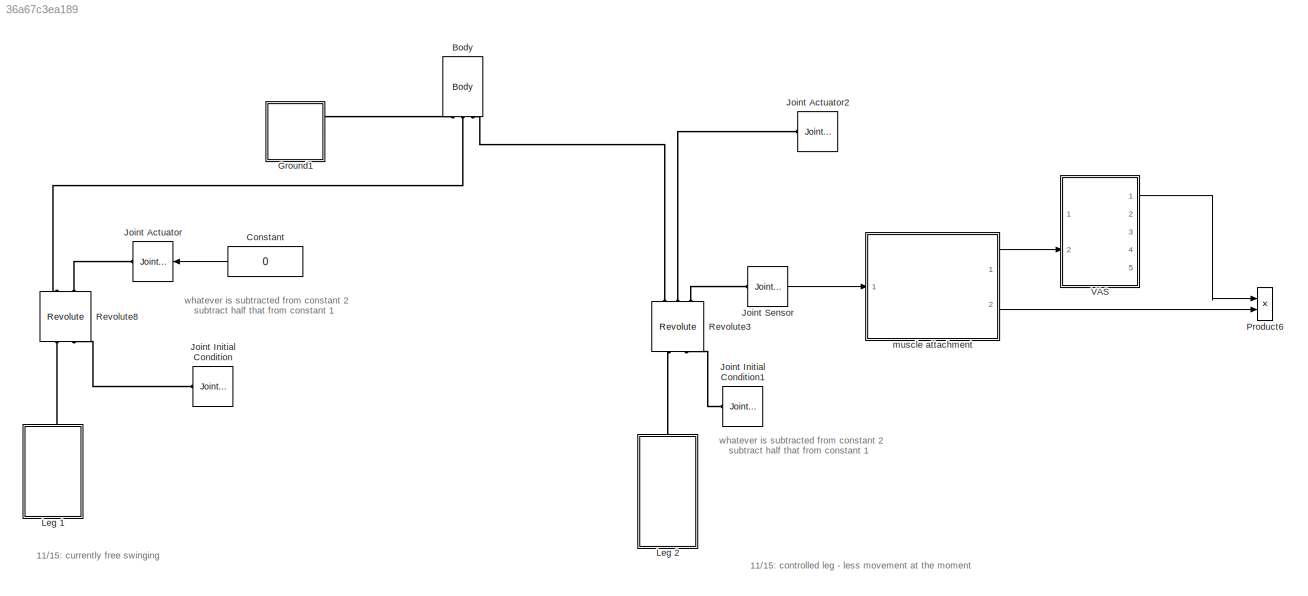
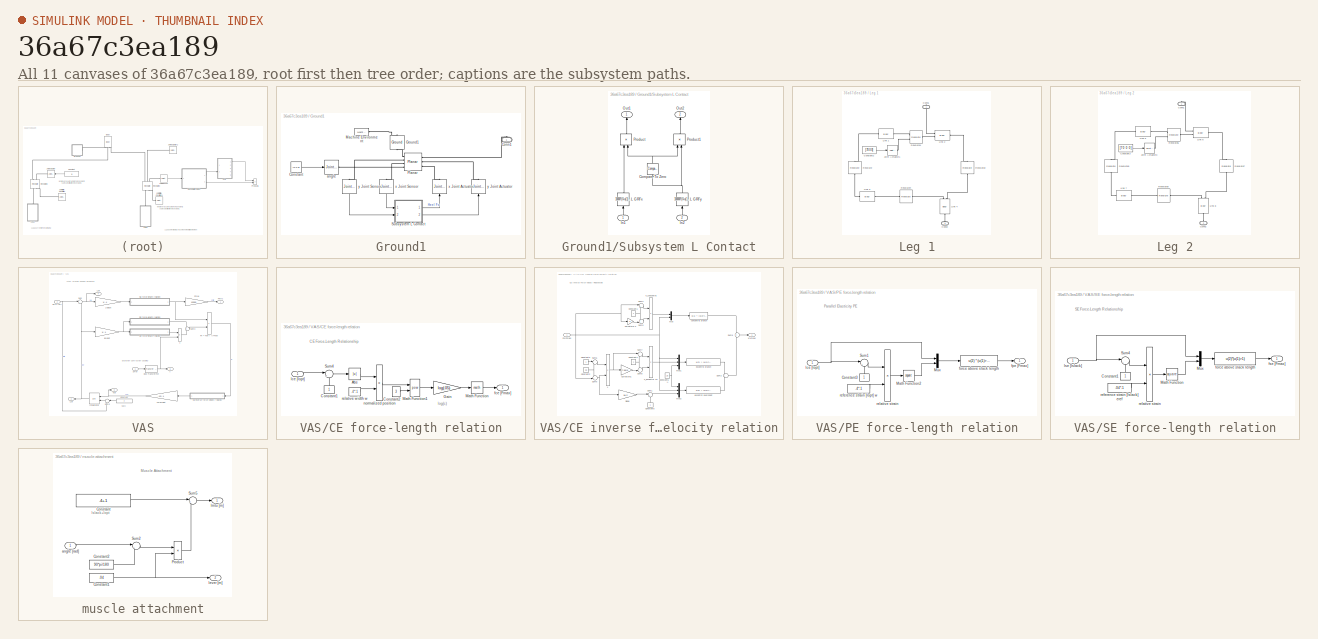
[diagram: thumbnail index - all 11 canvases of the model, root first then tree order]
MODEL slx_36a67c3ea189
KIND model
BLOCK [Reference] Body  REF=mblibv1/Bodies/Body
  AttachedToCS = CG
  BodyColor = [1 0 0]
  BodyColorSelMode = MACHINE_DEFAULT
  CG = Left$CG$[0 0 0]$CS1$CS1$m$[0 0 0]$Euler X-Y-Z$deg$WORLD$false$none
  CGPos = [0 0 0]
  CGRot = [0 0 0]
  CS0Pos = []
  CS0Rot = []
  CS10Pos = []
  CS10Rot = []
  CS11Pos = []
  CS11Rot = []
  CS12Pos = []
  CS12Rot = []
  CS13Pos = []
  CS13Rot = []
  CS14Pos = []
  CS14Rot = []
  CS15Pos = []
  CS15Rot = []
  CS16Pos = []
  CS16Rot = []
  CS17Pos = []
  CS17Rot = []
  CS18Pos = []
  CS18Rot = []
  CS19Pos = []
  CS19Rot = []
  CS1Pos = [0 0 0]
  CS1Rot = [0 0 0]
  CS20Pos = []
  CS20Rot = []
  CS2Pos = [0 .25 0]
  CS2Rot = [0 0 0]
  CS3Pos = [0 0 0]
  CS3Rot = [0 0 0]
  CS4Pos = [0 0 0]
  CS4Rot = [0 0 0]
  CS5Pos = []
  CS5Rot = []
  CS6Pos = []
  CS6Rot = []
  CS7Pos = []
  CS7Rot = []
  CS8Pos = []
  CS8Rot = []
  CS9Pos = []
  CS9Rot = []
  ClassName = Body
  Density = 1
  DensityUnits = kg/m^3
  DensityUse = false
  DialogClass = MechanicalBodyBlock
  GraphicsMode = MACHINE_DEFAULT
  Inertia = eye(3)
  InertiaUnits = kg*m^2
  LConnTagsString = CS4|CS3|CS1
  Mass = 44
  MassUnits = kg
  Ports = [0, 0, 0, 0, 0, 3, 1]
  RConnTagsString = CS2
  Shape = Cylinder
  ShapeDims = [1 1]
  ShapeUnits = m
  ShapeUse = false
  SourceBlock = mblibv1/Bodies/Body
  SourceType = Body
  UpdateFromCAD = off
  WorkingFrames = Left$CS4$[0 0 0]$Adjoining$Adjoining$m$[0 0 0]$Euler X-Y-Z$deg$WORLD$true$none#Left$CS3$[0 0 0]$CS4$CS4$m$[0 0 0]$Euler X-Y-Z$deg$WORLD$true$none#Left$CS1$[0 0 0]$CS4$CS4$m$[0 0 0]$Euler X-Y-Z$deg$WORLD$true$none#Right$CS2$[0 .25 0]$CS4$CS4$m$[0 0 0]$Euler X-Y-Z$deg$WORLD$true$none
BLOCK [Constant] Constant
  Value = 0
BLOCK [SubSystem] Ground1
  FunctionWithSeparateData = off
  MaskHideContents = off
  MinAlgLoopOccurrences = off
  Opaque = off
  Ports = [0, 0, 0, 0, 0, 0, 1]
  PropExecContextOutsideSubsystem = off
  RTWSystemCode = Auto
  RequestExecContextInheritance = off
BLOCK [PMIOPort] Ground1/Conn1
  Port = 1
  Side = Right
BLOCK [Constant] Ground1/Constant
  Value = [0 0 0]
BLOCK [Reference] Ground1/Ground1  REF=mblibv1/Bodies/Ground
  ClassName = Ground
  CoordPosition = [0 0 0]
  CoordPositionUnits = m
  DialogClass = GroundBlock
  LeftPortType = env
  MachineId = [1 0]
  PhysicalDomain = Mechanical
  Ports = [0, 0, 0, 0, 0, 1, 1]
  RightPortType = workingframe
  ShowEnvPort = on
  SourceBlock = mblibv1/Bodies/Ground
  SourceType = Ground
  StateVectorMgrId = 0
  UpdateFromCAD = off
  UserDataPersistent = on
BLOCK [Reference] Ground1/Machine Environment  REF=mblibv1/Bodies/Machine
Environment
  AnalysisType = Forward dynamics
  AngularAssemblyTolerance = 1e-3
  AngularAssemblyToleranceUnits = rad
  BodyColorSelMode = Use model default
  BodyVisualizationType = Use model default body geometries
  ClassName = Environment
  ConstraintAbsTolerance = 1e-4
  ConstraintRelTolerance = 1e-4
  ConstraintSolverType = Stabilizing
  DefaultBodyColor = [1 0 0]
  DialogTemplateClass = MECH.MachineEnvironment
  Dimensionality = Auto-detect
  Gravity = [0 -9.81 0]
  GravityAsSignal = off
  GravityUnits = m/s^2
  LinearAssemblyTolerance = 1e-3
  LinearAssemblyToleranceUnits = m
  PerturbationSize = 1e-5
  PhysicalDomain = Mechanical
  PortType = env
  Ports = [0, 0, 0, 0, 0, 0, 1]
  RedundancyAnalysisTolerance = 1e-14
  RedundancyAnalysisToleranceType = Automatically select tolerance
  SourceBlock = mblibv1/Bodies/Machine\nEnvironment
  SourceType = Machine Environment
  StatePerturbationType = Fixed
  SyncWhenCopied = off
  UseRobustSingularityHandling = off
  VisualizeMachine = on
BLOCK [Reference] Ground1/Planar  REF=mblibv1/Joints/Planar
  ClassName = PlanarJoint
  CutJoint = off
  DialogClass = JointBlock
  LConnTagsString = __newl0|SA1|SA2|SA3
  MarkAsCut = off
  NumSAPorts = 5
  P1Axis = [1 0 0]
  P2Axis = [0 1 0]
  Ports = [0, 0, 0, 0, 0, 4, 3]
  PrimitiveProps = P1$World$[1 0 0]$prismatic#P2$World$[0 1 0]$prismatic#R1$World$[0 0 1]$revolute
  Primitives = prismatic_prismatic
  R1Axis = [0 0 1]
  RConnTagsString = __newr0|SA1|SA2
  SourceBlock = mblibv1/Joints/Planar
  SourceType = Planar
  UpdateFromCAD = off
BLOCK [SubSystem] Ground1/Subsystem L Contact
  FunctionWithSeparateData = off
  MaskHideContents = off
  MinAlgLoopOccurrences = off
  Opaque = off
  Ports = [2, 2]
  PropExecContextOutsideSubsystem = off
  RTWSystemCode = Auto
  RequestExecContextInheritance = off
BLOCK [Reference] Ground1/Subsystem L Contact/Compare To Zero  REF=simulink/Logic and Bit
Operations/Compare
To Zero
  OutDataTypeStr = uint8
  Ports = [1, 1]
  SourceBlock = simulink/Logic and Bit\nOperations/Compare\nTo Zero
  SourceType = Compare To Zero
  ZeroCross = off
  relop = >
BLOCK [Inport] Ground1/Subsystem L Contact/In1
  IconDisplay = Port number
BLOCK [Inport] Ground1/Subsystem L Contact/In2
  IconDisplay = Port number
  Port = 2
BLOCK [Fcn] Ground1/Subsystem L Contact/L GRFx
  Expr = 10000*(0-u(1))+1000*(0-u(2))
BLOCK [Fcn] Ground1/Subsystem L Contact/L GRFy
  Expr = 100000*(0-u(1))+10000*(0-u(2))
BLOCK [Outport] Ground1/Subsystem L Contact/Out1
  IconDisplay = Port number
  InitialOutput = 0
  OutputWhenDisabled = reset
BLOCK [Outport] Ground1/Subsystem L Contact/Out2
  IconDisplay = Port number
  InitialOutput = 0
  OutputWhenDisabled = reset
  Port = 2
BLOCK [Product] Ground1/Subsystem L Contact/Product
  InputSameDT = off
  OutDataTypeStr = Inherit: Inherit via internal rule
  Ports = [2, 1]
  SaturateOnIntegerOverflow = off
BLOCK [Product] Ground1/Subsystem L Contact/Product1
  InputSameDT = off
  OutDataTypeStr = Inherit: Inherit via internal rule
  Ports = [2, 1]
  SaturateOnIntegerOverflow = off
BLOCK [Reference] Ground1/angle  REF=mblibv1/Sensors & 
Actuators/Joint Actuator
  AccelerationUnits = m/s^2
  ActiveIO = on
  ActuationStyle = Motion
  AngleUnits = deg
  ArcAccelerationUnits = deg/s^2
  ArcVelocityUnits = deg/s
  ClassName = JointActuator
  CoordPositionUnits = m
  DialogClass = MechanicalActuatorBlock
  ForceUnits = N
  PhysicalDomain = Mechanical
  PortType = blob
  Ports = [1, 0, 0, 0, 0, 0, 1]
  Primitive = R1
  ReferenceFrame = Absolute (World)
  SourceBlock = mblibv1/Sensors & \nActuators/Joint Actuator
  SourceType = Joint Actuator
  TorqueUnits = N*m
  UpdateFromCAD = off
  VelocityUnits = m/s
  Width = 3
BLOCK [Reference] Ground1/x Joint Actuator  REF=mblibv1/Sensors & 
Actuators/Joint Actuator
  AccelerationUnits = m/s^2
  ActiveIO = on
  ActuationStyle = Force
  AngleUnits = deg
  ArcAccelerationUnits = deg/s^2
  ArcVelocityUnits = deg/s
  ClassName = JointActuator
  CoordPositionUnits = m
  DialogClass = MechanicalActuatorBlock
  ForceUnits = N
  PhysicalDomain = Mechanical
  PortType = blob
  Ports = [1, 0, 0, 0, 0, 0, 1]
  Primitive = P1
  ReferenceFrame = Absolute (World)
  SourceBlock = mblibv1/Sensors & \nActuators/Joint Actuator
  SourceType = Joint Actuator
  TorqueUnits = N*m
  UpdateFromCAD = off
  VelocityUnits = m/s
  Width = 1
BLOCK [Reference] Ground1/x Joint Sensor  REF=mblibv1/Sensors & 
Actuators/Joint Sensor
  Acceleration = off
  AccelerationUnits = m/s^2
  ActiveIO = on
  Angle = on
  AngleUnits = rad
  ArcAcceleration = off
  ArcAccelerationUnits = deg/s^2
  ArcVelocity = on
  ArcVelocityUnits = rad/s
  ClassName = JointSensor
  CoordPosition = on
  CoordPositionUnits = m
  DialogClass = MechanicalSensorBlock
  Force = off
  ForceUnits = N
  Muxed = on
  OutputVector = [1]
  PhysicalDomain = Mechanical
  PortType = blob
  Ports = [0, 1, 0, 0, 0, 1]
  Pose = off
  Primitive = P1
  Quaternion = on
  QuaternionDDT = off
  QuaternionDT = off
  QuaternionUnits = off
  ReactionForce = off
  ReactionForceUnits = N
  ReactionMoment = off
  ReactionMomentUnits = N*m
  ReactionReferenceFrame = Absolute (World)
  ReactionSensedSide = Base
  ReferenceFrame = Absolute (World)
  SourceBlock = mblibv1/Sensors & \nActuators/Joint Sensor
  SourceType = Joint Sensor
  Torque = off
  TorqueUnits = N*m
  UpdateFromCAD = off
  Velocity = on
  VelocityUnits = m/s
  Width = 2
BLOCK [Reference] Ground1/y Joint Actuator  REF=mblibv1/Sensors & 
Actuators/Joint Actuator
  AccelerationUnits = m/s^2
  ActiveIO = on
  ActuationStyle = Force
  AngleUnits = deg
  ArcAccelerationUnits = deg/s^2
  ArcVelocityUnits = deg/s
  ClassName = JointActuator
  CoordPositionUnits = m
  DialogClass = MechanicalActuatorBlock
  ForceUnits = N
  PhysicalDomain = Mechanical
  PortType = blob
  Ports = [1, 0, 0, 0, 0, 0, 1]
  Primitive = P2
  ReferenceFrame = Absolute (World)
  SourceBlock = mblibv1/Sensors & \nActuators/Joint Actuator
  SourceType = Joint Actuator
  TorqueUnits = N*m
  UpdateFromCAD = off
  VelocityUnits = m/s
  Width = 1
BLOCK [Reference] Ground1/y Joint Sensor  REF=mblibv1/Sensors & 
Actuators/Joint Sensor
  Acceleration = off
  AccelerationUnits = m/s^2
  ActiveIO = on
  Angle = on
  AngleUnits = rad
  ArcAcceleration = off
  ArcAccelerationUnits = deg/s^2
  ArcVelocity = on
  ArcVelocityUnits = rad/s
  ClassName = JointSensor
  CoordPosition = on
  CoordPositionUnits = m
  DialogClass = MechanicalSensorBlock
  Force = off
  ForceUnits = N
  Muxed = on
  OutputVector = [1]
  PhysicalDomain = Mechanical
  PortType = blob
  Ports = [0, 1, 0, 0, 0, 1]
  Pose = off
  Primitive = P2
  Quaternion = on
  QuaternionDDT = off
  QuaternionDT = off
  QuaternionUnits = off
  ReactionForce = off
  ReactionForceUnits = N
  ReactionMoment = off
  ReactionMomentUnits = N*m
  ReactionReferenceFrame = Absolute (World)
  ReactionSensedSide = Base
  ReferenceFrame = Absolute (World)
  SourceBlock = mblibv1/Sensors & \nActuators/Joint Sensor
  SourceType = Joint Sensor
  Torque = off
  TorqueUnits = N*m
  UpdateFromCAD = off
  Velocity = on
  VelocityUnits = m/s
  Width = 2
BLOCK [Reference] Joint Actuator  REF=mblibv1/Sensors & 
Actuators/Joint Actuator
  AccelerationUnits = m/s^2
  ActiveIO = off
  ActuationStyle = Force
  AngleUnits = deg
  ArcAccelerationUnits = deg/s^2
  ArcVelocityUnits = deg/s
  ClassName = JointActuator
  CoordPositionUnits = m
  DialogClass = MechanicalActuatorBlock
  ForceUnits = N
  PhysicalDomain = Mechanical
  PortType = blob
  Ports = [1, 0, 0, 0, 0, 0, 1]
  Primitive = R1
  ReferenceFrame = Absolute (World)
  SourceBlock = mblibv1/Sensors & \nActuators/Joint Actuator
  SourceType = Joint Actuator
  TorqueUnits = N*m
  UpdateFromCAD = off
  VelocityUnits = m/s
  Width = 1
BLOCK [Reference] Joint Actuator2  REF=mblibv1/Sensors & 
Actuators/Joint Actuator
  AccelerationUnits = m/s^2
  ActiveIO = on
  ActuationStyle = Force
  AngleUnits = deg
  ArcAccelerationUnits = deg/s^2
  ArcVelocityUnits = deg/s
  ClassName = JointActuator
  CoordPositionUnits = m
  DialogClass = MechanicalActuatorBlock
  ForceUnits = N
  PhysicalDomain = Mechanical
  PortType = blob
  Ports = [1, 0, 0, 0, 0, 0, 1]
  Primitive = R1
  ReferenceFrame = Absolute (World)
  SourceBlock = mblibv1/Sensors & \nActuators/Joint Actuator
  SourceType = Joint Actuator
  TorqueUnits = N*m
  UpdateFromCAD = off
  VelocityUnits = m/s
  Width = 1
BLOCK [Reference] Joint Initial Condition  REF=mblibv1/Sensors & 
Actuators/Joint Initial Condition
  ClassName = InitialCondition
  DialogClass = InitialConditionBlock
  InitialConditions = P1$false$0$m$deg$0$m/s$deg/s#P2$false$0$m$deg$0$m/s$deg/s#P3$false$0$m$deg$0$m/s$deg/s#R1$true$-190$m$deg$0$m/s$deg/s#R2$false$0$m$deg$0$m/s$deg/s#R3$false$0$m$deg$0$m/s$deg/s#S$false$0$m$deg$0$m/s$deg/s
  LeftPortType = blob
  P1PIC = 0
  P1VIC = 0
  P2PIC = 0
  P2VIC = 0
  P3PIC = 0
  P3VIC = 0
  PhysicalDomain = mechanical
  Ports = [0, 0, 0, 0, 0, 0, 1]
  R1PIC = -190
  R1VIC = 0
  R2PIC = 0
  R2VIC = 0
  R3PIC = 0
  R3VIC = 0
  RightPortType = blob
  SPIC = 0
  SVIC = 0
  SourceBlock = mblibv1/Sensors & \nActuators/Joint Initial Condition
  SourceType = Joint Initial Condition
  UpdateFromCAD = off
BLOCK [Reference] Joint Initial Condition1  REF=mblibv1/Sensors & 
Actuators/Joint Initial Condition
  ClassName = InitialCondition
  DialogClass = InitialConditionBlock
  InitialConditions = P1$false$0$m$deg$0$m/s$deg/s#P2$false$0$m$deg$0$m/s$deg/s#P3$false$0$m$deg$0$m/s$deg/s#R1$true$-147.5$m$deg$0$m/s$deg/s#R2$false$0$m$deg$0$m/s$deg/s#R3$false$0$m$deg$0$m/s$deg/s#S$false$0$m$deg$0$m/s$deg/s
  LeftPortType = blob
  P1PIC = 0
  P1VIC = 0
  P2PIC = 0
  P2VIC = 0
  P3PIC = 0
  P3VIC = 0
  PhysicalDomain = mechanical
  Ports = [0, 0, 0, 0, 0, 0, 1]
  R1PIC = -147.5
  R1VIC = 0
  R2PIC = 0
  R2VIC = 0
  R3PIC = 0
  R3VIC = 0
  RightPortType = blob
  SPIC = 0
  SVIC = 0
  SourceBlock = mblibv1/Sensors & \nActuators/Joint Initial Condition
  SourceType = Joint Initial Condition
  UpdateFromCAD = off
BLOCK [Reference] Joint Sensor  REF=mblibv1/Sensors & 
Actuators/Joint Sensor
  Acceleration = off
  AccelerationUnits = m/s^2
  ActiveIO = on
  Angle = on
  AngleUnits = rad
  ArcAcceleration = off
  ArcAccelerationUnits = deg/s^2
  ArcVelocity = off
  ArcVelocityUnits = deg/s
  ClassName = JointSensor
  CoordPosition = on
  CoordPositionUnits = m
  DialogClass = MechanicalSensorBlock
  Force = off
  ForceUnits = N
  Muxed = on
  OutputVector = [1]
  PhysicalDomain = Mechanical
  PortType = blob
  Ports = [0, 1, 0, 0, 0, 1]
  Pose = off
  Primitive = R1
  Quaternion = on
  QuaternionDDT = off
  QuaternionDT = off
  QuaternionUnits = off
  ReactionForce = off
  ReactionForceUnits = N
  ReactionMoment = off
  ReactionMomentUnits = N*m
  ReactionReferenceFrame = Absolute (World)
  ReactionSensedSide = Base
  ReferenceFrame = Absolute (World)
  SourceBlock = mblibv1/Sensors & \nActuators/Joint Sensor
  SourceType = Joint Sensor
  Torque = off
  TorqueUnits = N*m
  UpdateFromCAD = off
  Velocity = off
  VelocityUnits = m/s
  Width = 1
BLOCK [SubSystem] Leg 1
  FunctionWithSeparateData = off
  MaskHideContents = off
  MinAlgLoopOccurrences = off
  Opaque = off
  Ports = [0, 0, 0, 0, 0, 1, 1]
  PropExecContextOutsideSubsystem = off
  RTWSystemCode = Auto
  RequestExecContextInheritance = off
BLOCK [PMIOPort] Leg 1/Conn1
  Port = 1
  Side = Right
BLOCK [PMIOPort] Leg 1/Conn2
  Port = 2
  Side = Left
BLOCK [Constant] Leg 1/Constant2
  Value = [70 0 0]
BLOCK [Reference] Leg 1/Joint Actuator1  REF=mblibv1/Sensors & 
Actuators/Joint Actuator
  AccelerationUnits = m/s^2
  ActiveIO = off
  ActuationStyle = Motion
  AngleUnits = deg
  ArcAccelerationUnits = deg/s^2
  ArcVelocityUnits = deg/s
  ClassName = JointActuator
  CoordPositionUnits = m
  DialogClass = MechanicalActuatorBlock
  ForceUnits = N
  PhysicalDomain = Mechanical
  PortType = blob
  Ports = [1, 0, 0, 0, 0, 0, 1]
  Primitive = R1
  ReferenceFrame = Absolute (World)
  SourceBlock = mblibv1/Sensors & \nActuators/Joint Actuator
  SourceType = Joint Actuator
  TorqueUnits = N*m
  UpdateFromCAD = off
  VelocityUnits = m/s
  Width = 3
BLOCK [Reference] Leg 1/Link 1  REF=mblibv1/Bodies/Body
  AttachedToCS = CG
  BodyColor = [1 0 0]
  BodyColorSelMode = MACHINE_DEFAULT
  CG = Left$CG$[0 -.16957 0]$CS1$CS1$m$[0 0 0]$Euler X-Y-Z$deg$WORLD$false$none
  CGPos = [0 -.16957 0]
  CGRot = [0 0 0]
  CS0Pos = []
  CS0Rot = []
  CS10Pos = []
  CS10Rot = []
  CS11Pos = []
  CS11Rot = []
  CS12Pos = []
  CS12Rot = []
  CS13Pos = []
  CS13Rot = []
  CS14Pos = []
  CS14Rot = []
  CS15Pos = []
  CS15Rot = []
  CS16Pos = []
  CS16Rot = []
  CS17Pos = []
  CS17Rot = []
  CS18Pos = []
  CS18Rot = []
  CS19Pos = []
  CS19Rot = []
  CS1Pos = [0 .45 0]
  CS1Rot = [0 0 0]
  CS20Pos = []
  CS20Rot = []
  CS2Pos = [0 0 0]
  CS2Rot = [0 0 0]
  CS3Pos = []
  CS3Rot = []
  CS4Pos = []
  CS4Rot = []
  CS5Pos = []
  CS5Rot = []
  CS6Pos = []
  CS6Rot = []
  CS7Pos = []
  CS7Rot = []
  CS8Pos = []
  CS8Rot = []
  CS9Pos = []
  CS9Rot = []
  ClassName = Body
  Density = 1
  DensityUnits = kg/m^3
  DensityUse = false
  DialogClass = MechanicalBodyBlock
  GraphicsMode = MACHINE_DEFAULT
  Inertia = eye(3)
  InertiaUnits = kg*m^2
  LConnTagsString = CS1
  Mass = .66149
  MassUnits = kg
  Ports = [0, 0, 0, 0, 0, 1, 1]
  RConnTagsString = CS2
  Shape = Cylinder
  ShapeDims = [1 1]
  ShapeUnits = m
  ShapeUse = false
  SourceBlock = mblibv1/Bodies/Body
  SourceType = Body
  UpdateFromCAD = off
  WorkingFrames = Left$CS1$[0 .45 0]$CS2$CS2$m$[0 0 0]$Euler X-Y-Z$deg$WORLD$true$none#Right$CS2$[0 0 0]$Adjoining$Adjoining$m$[0 0 0]$Euler X-Y-Z$deg$WORLD$true$none
BLOCK [Reference] Leg 1/Link 2  REF=mblibv1/Bodies/Body
  AttachedToCS = CG
  BodyColor = [1 0 0]
  BodyColorSelMode = MACHINE_DEFAULT
  CG = Left$CG$[0 -.18626 0]$CS2$CS2$m$[0 0 0]$Euler X-Y-Z$deg$WORLD$false$none
  CGPos = [0 -.18626 0]
  CGRot = [0 0 0]
  CS0Pos = []
  CS0Rot = []
  CS10Pos = []
  CS10Rot = []
  CS11Pos = []
  CS11Rot = []
  CS12Pos = []
  CS12Rot = []
  CS13Pos = []
  CS13Rot = []
  CS14Pos = []
  CS14Rot = []
  CS15Pos = []
  CS15Rot = []
  CS16Pos = []
  CS16Rot = []
  CS17Pos = []
  CS17Rot = []
  CS18Pos = []
  CS18Rot = []
  CS19Pos = []
  CS19Rot = []
  CS1Pos = [0 0 0]
  CS1Rot = [0 0 0]
  CS20Pos = []
  CS20Rot = []
  CS2Pos = [0 .5 0]
  CS2Rot = [0 0 0]
  CS3Pos = [0 0 0]
  CS3Rot = [0 0 0]
  CS4Pos = []
  CS4Rot = []
  CS5Pos = []
  CS5Rot = []
  CS6Pos = []
  CS6Rot = []
  CS7Pos = []
  CS7Rot = []
  CS8Pos = []
  CS8Rot = []
  CS9Pos = []
  CS9Rot = []
  ClassName = Body
  Density = 1
  DensityUnits = kg/m^3
  DensityUse = false
  DialogClass = MechanicalBodyBlock
  GraphicsMode = MACHINE_DEFAULT
  Inertia = eye(3)
  InertiaUnits = kg*m^2
  LConnTagsString = CS3|CS1
  Mass = .68292
  MassUnits = kg
  Ports = [0, 0, 0, 0, 0, 2, 1]
  RConnTagsString = CS2
  Shape = Cylinder
  ShapeDims = [1 1]
  ShapeUnits = m
  ShapeUse = false
  SourceBlock = mblibv1/Bodies/Body
  SourceType = Body
  UpdateFromCAD = off
  WorkingFrames = Left$CS3$[0 0 0]$Adjoining$Adjoining$m$[0 0 0]$Euler X-Y-Z$deg$WORLD$true$none#Left$CS1$[0 0 0]$CS3$CS3$m$[0 0 0]$Euler X-Y-Z$deg$WORLD$true$none#Right$CS2$[0 .5 0]$CS3$CS3$m$[0 0 0]$Euler X-Y-Z$deg$WORLD$true$none
BLOCK [Reference] Leg 1/Link 3  REF=mblibv1/Bodies/Body
  AttachedToCS = CG
  BodyColor = [1 0 0]
  BodyColorSelMode = MACHINE_DEFAULT
  CG = Left$CG$[0 -.24997 0]$CS1$CS1$m$[0 0 0]$Euler X-Y-Z$deg$WORLD$false$none
  CGPos = [0 -.24997 0]
  CGRot = [0 0 0]
  CS0Pos = []
  CS0Rot = []
  CS10Pos = []
  CS10Rot = []
  CS11Pos = []
  CS11Rot = []
  CS12Pos = []
  CS12Rot = []
  CS13Pos = []
  CS13Rot = []
  CS14Pos = []
  CS14Rot = []
  CS15Pos = []
  CS15Rot = []
  CS16Pos = []
  CS16Rot = []
  CS17Pos = []
  CS17Rot = []
  CS18Pos = []
  CS18Rot = []
  CS19Pos = []
  CS19Rot = []
  CS1Pos = [0 .5 0]
  CS1Rot = [0 0 0]
  CS20Pos = []
  CS20Rot = []
  CS2Pos = [0 0 0]
  CS2Rot = [0 0 0]
  CS3Pos = []
  CS3Rot = []
  CS4Pos = []
  CS4Rot = []
  CS5Pos = []
  CS5Rot = []
  CS6Pos = []
  CS6Rot = []
  CS7Pos = []
  CS7Rot = []
  CS8Pos = []
  CS8Rot = []
  CS9Pos = []
  CS9Rot = []
  ClassName = Body
  Density = 1
  DensityUnits = kg/m^3
  DensityUse = false
  DialogClass = MechanicalBodyBlock
  GraphicsMode = MACHINE_DEFAULT
  Inertia = eye(3)
  InertiaUnits = kg*m^2
  LConnTagsString = CS1
  Mass = .19126
  MassUnits = kg
  Ports = [0, 0, 0, 0, 0, 1, 1]
  RConnTagsString = CS2
  Shape = Cylinder
  ShapeDims = [1 1]
  ShapeUnits = m
  ShapeUse = false
  SourceBlock = mblibv1/Bodies/Body
  SourceType = Body
  UpdateFromCAD = off
  WorkingFrames = Left$CS1$[0 .5 0]$CS2$CS2$m$[0 0 0]$Euler X-Y-Z$deg$WORLD$true$none#Right$CS2$[0 0 0]$Adjoining$Adjoining$m$[0 0 0]$Euler X-Y-Z$deg$WORLD$true$none
BLOCK [Reference] Leg 1/Link 4  REF=mblibv1/Bodies/Body
  AttachedToCS = CG
  BodyColor = [1 0 0]
  BodyColorSelMode = MACHINE_DEFAULT
  CG = Left$CG$[0 -.23832 0]$CS2$CS2$m$[0 0 0]$Euler X-Y-Z$deg$WORLD$false$none
  CGPos = [0 -.23832 0]
  CGRot = [0 0 0]
  CS0Pos = []
  CS0Rot = []
  CS10Pos = []
  CS10Rot = []
  CS11Pos = []
  CS11Rot = []
  CS12Pos = []
  CS12Rot = []
  CS13Pos = []
  CS13Rot = []
  CS14Pos = []
  CS14Rot = []
  CS15Pos = []
  CS15Rot = []
  CS16Pos = []
  CS16Rot = []
  CS17Pos = []
  CS17Rot = []
  CS18Pos = []
  CS18Rot = []
  CS19Pos = []
  CS19Rot = []
  CS1Pos = [0 0 0]
  CS1Rot = [0 0 0]
  CS20Pos = []
  CS20Rot = []
  CS2Pos = [0 .5 0]
  CS2Rot = [0 0 0]
  CS3Pos = [0 .45 0]
  CS3Rot = [0 0 0]
  CS4Pos = []
  CS4Rot = []
  CS5Pos = []
  CS5Rot = []
  CS6Pos = []
  CS6Rot = []
  CS7Pos = []
  CS7Rot = []
  CS8Pos = []
  CS8Rot = []
  CS9Pos = []
  CS9Rot = []
  ClassName = Body
  Density = 1
  DensityUnits = kg/m^3
  DensityUse = false
  DialogClass = MechanicalBodyBlock
  GraphicsMode = MACHINE_DEFAULT
  Inertia = eye(3)
  InertiaUnits = kg*m^2
  LConnTagsString = CS3|CS1
  Mass = .42493
  MassUnits = kg
  Ports = [0, 0, 0, 0, 0, 2, 1]
  RConnTagsString = CS2
  Shape = Cylinder
  ShapeDims = [1 1]
  ShapeUnits = m
  ShapeUse = false
  SourceBlock = mblibv1/Bodies/Body
  SourceType = Body
  UpdateFromCAD = off
  WorkingFrames = Left$CS3$[0 .45 0]$CS1$CS1$m$[0 0 0]$Euler X-Y-Z$deg$WORLD$true$none#Left$CS1$[0 0 0]$Adjoining$Adjoining$m$[0 0 0]$Euler X-Y-Z$deg$WORLD$true$none#Right$CS2$[0 .5 0]$CS1$CS1$m$[0 0 0]$Euler X-Y-Z$deg$WORLD$true$none
BLOCK [Reference] Leg 1/Revolute  REF=mblibv1/Joints/Revolute
  ClassName = Joint
  CutJoint = off
  DialogClass = JointBlock
  LConnTagsString = __newl0
  MarkAsCut = off
  NumSAPorts = 0
  Ports = [0, 0, 0, 0, 0, 1, 1]
  PrimitiveProps = R1$World$[0 0 1]$revolute
  Primitives = prismatic
  R1Axis = [0 0 1]
  RConnTagsString = __newr0
  SourceBlock = mblibv1/Joints/Revolute
  SourceType = Revolute
  UpdateFromCAD = off
BLOCK [Reference] Leg 1/Revolute1  REF=mblibv1/Joints/Revolute
  ClassName = Joint
  CutJoint = off
  DialogClass = JointBlock
  LConnTagsString = __newl0|SA1
  MarkAsCut = off
  NumSAPorts = 1
  Ports = [0, 0, 0, 0, 0, 2, 1]
  PrimitiveProps = R1$World$[0 0 1]$revolute
  Primitives = prismatic
  R1Axis = [0 0 1]
  RConnTagsString = __newr0
  SourceBlock = mblibv1/Joints/Revolute
  SourceType = Revolute
  UpdateFromCAD = off
BLOCK [Reference] Leg 1/Revolute2  REF=mblibv1/Joints/Revolute
  ClassName = Joint
  CutJoint = off
  DialogClass = JointBlock
  LConnTagsString = __newl0
  MarkAsCut = off
  NumSAPorts = 0
  Ports = [0, 0, 0, 0, 0, 1, 1]
  PrimitiveProps = R1$World$[0 0 1]$revolute
  Primitives = prismatic
  R1Axis = [0 0 1]
  RConnTagsString = __newr0
  SourceBlock = mblibv1/Joints/Revolute
  SourceType = Revolute
  UpdateFromCAD = off
BLOCK [Reference] Leg 1/Revolute4  REF=mblibv1/Joints/Revolute
  ClassName = Joint
  CutJoint = off
  DialogClass = JointBlock
  LConnTagsString = __newl0
  MarkAsCut = off
  NumSAPorts = 0
  Ports = [0, 0, 0, 0, 0, 1, 1]
  PrimitiveProps = R1$World$[0 0 1]$revolute
  Primitives = prismatic
  R1Axis = [0 0 1]
  RConnTagsString = __newr0
  SourceBlock = mblibv1/Joints/Revolute
  SourceType = Revolute
  UpdateFromCAD = off
BLOCK [SubSystem] Leg 2
  FunctionWithSeparateData = off
  MaskHideContents = off
  MinAlgLoopOccurrences = off
  Opaque = off
  Ports = [0, 0, 0, 0, 0, 1, 1]
  PropExecContextOutsideSubsystem = off
  RTWSystemCode = Auto
  RequestExecContextInheritance = off
BLOCK [PMIOPort] Leg 2/Conn1
  Port = 1
  Side = Right
BLOCK [PMIOPort] Leg 2/Conn2
  Port = 2
  Side = Left
BLOCK [Constant] Leg 2/Constant3
  Value = [70 0 0]
BLOCK [Reference] Leg 2/Joint Actuator3  REF=mblibv1/Sensors & 
Actuators/Joint Actuator
  AccelerationUnits = m/s^2
  ActiveIO = on
  ActuationStyle = Motion
  AngleUnits = deg
  ArcAccelerationUnits = deg/s^2
  ArcVelocityUnits = deg/s
  ClassName = JointActuator
  CoordPositionUnits = m
  DialogClass = MechanicalActuatorBlock
  ForceUnits = N
  PhysicalDomain = Mechanical
  PortType = blob
  Ports = [1, 0, 0, 0, 0, 0, 1]
  Primitive = R1
  ReferenceFrame = Absolute (World)
  SourceBlock = mblibv1/Sensors & \nActuators/Joint Actuator
  SourceType = Joint Actuator
  TorqueUnits = N*m
  UpdateFromCAD = off
  VelocityUnits = m/s
  Width = 3
BLOCK [Reference] Leg 2/Link 5  REF=mblibv1/Bodies/Body
  AttachedToCS = CG
  BodyColor = [1 0 0]
  BodyColorSelMode = MACHINE_DEFAULT
  CG = Left$CG$[0 -.16957 0]$CS1$CS1$m$[0 0 0]$Euler X-Y-Z$deg$WORLD$false$none
  CGPos = [0 -.16957 0]
  CGRot = [0 0 0]
  CS0Pos = []
  CS0Rot = []
  CS10Pos = []
  CS10Rot = []
  CS11Pos = []
  CS11Rot = []
  CS12Pos = []
  CS12Rot = []
  CS13Pos = []
  CS13Rot = []
  CS14Pos = []
  CS14Rot = []
  CS15Pos = []
  CS15Rot = []
  CS16Pos = []
  CS16Rot = []
  CS17Pos = []
  CS17Rot = []
  CS18Pos = []
  CS18Rot = []
  CS19Pos = []
  CS19Rot = []
  CS1Pos = [0 .45 0]
  CS1Rot = [0 0 0]
  CS20Pos = []
  CS20Rot = []
  CS2Pos = [0 0 0]
  CS2Rot = [0 0 0]
  CS3Pos = []
  CS3Rot = []
  CS4Pos = []
  CS4Rot = []
  CS5Pos = []
  CS5Rot = []
  CS6Pos = []
  CS6Rot = []
  CS7Pos = []
  CS7Rot = []
  CS8Pos = []
  CS8Rot = []
  CS9Pos = []
  CS9Rot = []
  ClassName = Body
  Density = 1
  DensityUnits = kg/m^3
  DensityUse = false
  DialogClass = MechanicalBodyBlock
  GraphicsMode = MACHINE_DEFAULT
  Inertia = eye(3)
  InertiaUnits = kg*m^2
  LConnTagsString = CS1
  Mass = .66149
  MassUnits = kg
  Ports = [0, 0, 0, 0, 0, 1, 1]
  RConnTagsString = CS2
  Shape = Cylinder
  ShapeDims = [1 1]
  ShapeUnits = m
  ShapeUse = false
  SourceBlock = mblibv1/Bodies/Body
  SourceType = Body
  UpdateFromCAD = off
  WorkingFrames = Left$CS1$[0 .45 0]$CS2$CS2$m$[0 0 0]$Euler X-Y-Z$deg$WORLD$true$none#Right$CS2$[0 0 0]$Adjoining$Adjoining$m$[0 0 0]$Euler X-Y-Z$deg$WORLD$true$none
BLOCK [Reference] Leg 2/Link 6  REF=mblibv1/Bodies/Body
  AttachedToCS = CG
  BodyColor = [1 0 0]
  BodyColorSelMode = MACHINE_DEFAULT
  CG = Left$CG$[0 -.18626 0]$CS2$CS2$m$[0 0 0]$Euler X-Y-Z$deg$WORLD$false$none
  CGPos = [0 -.18626 0]
  CGRot = [0 0 0]
  CS0Pos = []
  CS0Rot = []
  CS10Pos = []
  CS10Rot = []
  CS11Pos = []
  CS11Rot = []
  CS12Pos = []
  CS12Rot = []
  CS13Pos = []
  CS13Rot = []
  CS14Pos = []
  CS14Rot = []
  CS15Pos = []
  CS15Rot = []
  CS16Pos = []
  CS16Rot = []
  CS17Pos = []
  CS17Rot = []
  CS18Pos = []
  CS18Rot = []
  CS19Pos = []
  CS19Rot = []
  CS1Pos = [0 0 0]
  CS1Rot = [0 0 0]
  CS20Pos = []
  CS20Rot = []
  CS2Pos = [0 .5 0]
  CS2Rot = [0 0 0]
  CS3Pos = [0 0 0]
  CS3Rot = [0 0 0]
  CS4Pos = []
  CS4Rot = []
  CS5Pos = []
  CS5Rot = []
  CS6Pos = []
  CS6Rot = []
  CS7Pos = []
  CS7Rot = []
  CS8Pos = []
  CS8Rot = []
  CS9Pos = []
  CS9Rot = []
  ClassName = Body
  Density = 1
  DensityUnits = kg/m^3
  DensityUse = false
  DialogClass = MechanicalBodyBlock
  GraphicsMode = MACHINE_DEFAULT
  Inertia = eye(3)
  InertiaUnits = kg*m^2
  LConnTagsString = CS3|CS1
  Mass = .68292
  MassUnits = kg
  Ports = [0, 0, 0, 0, 0, 2, 1]
  RConnTagsString = CS2
  Shape = Cylinder
  ShapeDims = [1 1]
  ShapeUnits = m
  ShapeUse = false
  SourceBlock = mblibv1/Bodies/Body
  SourceType = Body
  UpdateFromCAD = off
  WorkingFrames = Left$CS3$[0 0 0]$Adjoining$Adjoining$m$[0 0 0]$Euler X-Y-Z$deg$WORLD$true$none#Left$CS1$[0 0 0]$CS3$CS3$m$[0 0 0]$Euler X-Y-Z$deg$WORLD$true$none#Right$CS2$[0 .5 0]$CS3$CS3$m$[0 0 0]$Euler X-Y-Z$deg$WORLD$true$none
BLOCK [Reference] Leg 2/Link 7  REF=mblibv1/Bodies/Body
  AttachedToCS = CG
  BodyColor = [1 0 0]
  BodyColorSelMode = MACHINE_DEFAULT
  CG = Left$CG$[0 -.24997 0]$CS1$CS1$m$[0 0 0]$Euler X-Y-Z$deg$WORLD$false$none
  CGPos = [0 -.24997 0]
  CGRot = [0 0 0]
  CS0Pos = []
  CS0Rot = []
  CS10Pos = []
  CS10Rot = []
  CS11Pos = []
  CS11Rot = []
  CS12Pos = []
  CS12Rot = []
  CS13Pos = []
  CS13Rot = []
  CS14Pos = []
  CS14Rot = []
  CS15Pos = []
  CS15Rot = []
  CS16Pos = []
  CS16Rot = []
  CS17Pos = []
  CS17Rot = []
  CS18Pos = []
  CS18Rot = []
  CS19Pos = []
  CS19Rot = []
  CS1Pos = [0 .5 0]
  CS1Rot = [0 0 0]
  CS20Pos = []
  CS20Rot = []
  CS2Pos = [0 0 0]
  CS2Rot = [0 0 0]
  CS3Pos = []
  CS3Rot = []
  CS4Pos = []
  CS4Rot = []
  CS5Pos = []
  CS5Rot = []
  CS6Pos = []
  CS6Rot = []
  CS7Pos = []
  CS7Rot = []
  CS8Pos = []
  CS8Rot = []
  CS9Pos = []
  CS9Rot = []
  ClassName = Body
  Density = 1
  DensityUnits = kg/m^3
  DensityUse = false
  DialogClass = MechanicalBodyBlock
  GraphicsMode = MACHINE_DEFAULT
  Inertia = eye(3)
  InertiaUnits = kg*m^2
  LConnTagsString = CS1
  Mass = .19126
  MassUnits = kg
  Ports = [0, 0, 0, 0, 0, 1, 1]
  RConnTagsString = CS2
  Shape = Cylinder
  ShapeDims = [1 1]
  ShapeUnits = m
  ShapeUse = false
  SourceBlock = mblibv1/Bodies/Body
  SourceType = Body
  UpdateFromCAD = off
  WorkingFrames = Left$CS1$[0 .5 0]$CS2$CS2$m$[0 0 0]$Euler X-Y-Z$deg$WORLD$true$none#Right$CS2$[0 0 0]$Adjoining$Adjoining$m$[0 0 0]$Euler X-Y-Z$deg$WORLD$true$none
BLOCK [Reference] Leg 2/Link 8  REF=mblibv1/Bodies/Body
  AttachedToCS = CG
  BodyColor = [1 0 0]
  BodyColorSelMode = MACHINE_DEFAULT
  CG = Left$CG$[0 -.23832 0]$CS2$CS2$m$[0 0 0]$Euler X-Y-Z$deg$WORLD$false$none
  CGPos = [0 -.23832 0]
  CGRot = [0 0 0]
  CS0Pos = []
  CS0Rot = []
  CS10Pos = []
  CS10Rot = []
  CS11Pos = []
  CS11Rot = []
  CS12Pos = []
  CS12Rot = []
  CS13Pos = []
  CS13Rot = []
  CS14Pos = []
  CS14Rot = []
  CS15Pos = []
  CS15Rot = []
  CS16Pos = []
  CS16Rot = []
  CS17Pos = []
  CS17Rot = []
  CS18Pos = []
  CS18Rot = []
  CS19Pos = []
  CS19Rot = []
  CS1Pos = [0 0 0]
  CS1Rot = [0 0 0]
  CS20Pos = []
  CS20Rot = []
  CS2Pos = [0 .5 0]
  CS2Rot = [0 0 0]
  CS3Pos = [0 .45 0]
  CS3Rot = [0 0 0]
  CS4Pos = []
  CS4Rot = []
  CS5Pos = []
  CS5Rot = []
  CS6Pos = []
  CS6Rot = []
  CS7Pos = []
  CS7Rot = []
  CS8Pos = []
  CS8Rot = []
  CS9Pos = []
  CS9Rot = []
  ClassName = Body
  Density = 1
  DensityUnits = kg/m^3
  DensityUse = false
  DialogClass = MechanicalBodyBlock
  GraphicsMode = MACHINE_DEFAULT
  Inertia = eye(3)
  InertiaUnits = kg*m^2
  LConnTagsString = CS3|CS1
  Mass = .42493
  MassUnits = kg
  Ports = [0, 0, 0, 0, 0, 2, 1]
  RConnTagsString = CS2
  Shape = Cylinder
  ShapeDims = [1 1]
  ShapeUnits = m
  ShapeUse = false
  SourceBlock = mblibv1/Bodies/Body
  SourceType = Body
  UpdateFromCAD = off
  WorkingFrames = Left$CS3$[0 .45 0]$CS1$CS1$m$[0 0 0]$Euler X-Y-Z$deg$WORLD$true$none#Left$CS1$[0 0 0]$Adjoining$Adjoining$m$[0 0 0]$Euler X-Y-Z$deg$WORLD$true$none#Right$CS2$[0 .5 0]$CS1$CS1$m$[0 0 0]$Euler X-Y-Z$deg$WORLD$true$none
BLOCK [Reference] Leg 2/Revolute5  REF=mblibv1/Joints/Revolute
  ClassName = Joint
  CutJoint = off
  DialogClass = JointBlock
  LConnTagsString = __newl0
  MarkAsCut = off
  NumSAPorts = 0
  Ports = [0, 0, 0, 0, 0, 1, 1]
  PrimitiveProps = R1$World$[0 0 1]$revolute
  Primitives = prismatic
  R1Axis = [0 0 1]
  RConnTagsString = __newr0
  SourceBlock = mblibv1/Joints/Revolute
  SourceType = Revolute
  UpdateFromCAD = off
BLOCK [Reference] Leg 2/Revolute6  REF=mblibv1/Joints/Revolute
  ClassName = Joint
  CutJoint = off
  DialogClass = JointBlock
  LConnTagsString = __newl0|SA1
  MarkAsCut = off
  NumSAPorts = 1
  Ports = [0, 0, 0, 0, 0, 2, 1]
  PrimitiveProps = R1$World$[0 0 1]$revolute
  Primitives = prismatic
  R1Axis = [0 0 1]
  RConnTagsString = __newr0
  SourceBlock = mblibv1/Joints/Revolute
  SourceType = Revolute
  UpdateFromCAD = off
BLOCK [Reference] Leg 2/Revolute7  REF=mblibv1/Joints/Revolute
  ClassName = Joint
  CutJoint = off
  DialogClass = JointBlock
  LConnTagsString = __newl0
  MarkAsCut = off
  NumSAPorts = 0
  Ports = [0, 0, 0, 0, 0, 1, 1]
  PrimitiveProps = R1$World$[0 0 1]$revolute
  Primitives = prismatic
  R1Axis = [0 0 1]
  RConnTagsString = __newr0
  SourceBlock = mblibv1/Joints/Revolute
  SourceType = Revolute
  UpdateFromCAD = off
BLOCK [Reference] Leg 2/Revolute9  REF=mblibv1/Joints/Revolute
  ClassName = Joint
  CutJoint = off
  DialogClass = JointBlock
  LConnTagsString = __newl0
  MarkAsCut = off
  NumSAPorts = 0
  Ports = [0, 0, 0, 0, 0, 1, 1]
  PrimitiveProps = R1$World$[0 0 1]$revolute
  Primitives = prismatic
  R1Axis = [0 0 1]
  RConnTagsString = __newr0
  SourceBlock = mblibv1/Joints/Revolute
  SourceType = Revolute
  UpdateFromCAD = off
BLOCK [Product] Product6
  InputSameDT = off
  OutDataTypeStr = Inherit: Inherit via internal rule
  Ports = [2, 1]
  SaturateOnIntegerOverflow = off
BLOCK [Reference] Revolute3  REF=mblibv1/Joints/Revolute
  ClassName = Joint
  CutJoint = off
  DialogClass = JointBlock
  LConnTagsString = __newl0|SA1|SA2
  MarkAsCut = off
  NumSAPorts = 3
  Ports = [0, 0, 0, 0, 0, 3, 2]
  PrimitiveProps = R1$World$[0 0 1]$revolute
  Primitives = prismatic
  R1Axis = [0 0 1]
  RConnTagsString = __newr0|SA1
  SourceBlock = mblibv1/Joints/Revolute
  SourceType = Revolute
  UpdateFromCAD = off
BLOCK [Reference] Revolute8  REF=mblibv1/Joints/Revolute
  ClassName = Joint
  CutJoint = off
  DialogClass = JointBlock
  LConnTagsString = __newl0|SA1
  MarkAsCut = off
  NumSAPorts = 2
  Ports = [0, 0, 0, 0, 0, 2, 2]
  PrimitiveProps = R1$World$[0 0 1]$revolute
  Primitives = prismatic
  R1Axis = [0 0 1]
  RConnTagsString = __newr0|SA1
  SourceBlock = mblibv1/Joints/Revolute
  SourceType = Revolute
  UpdateFromCAD = off
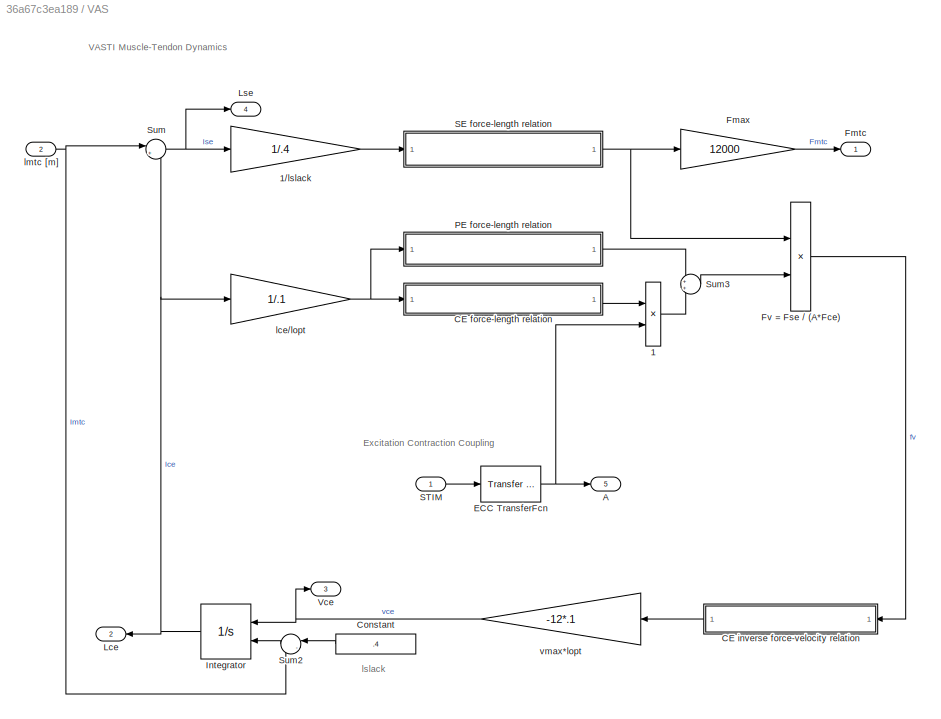
BLOCK [SubSystem] VAS
  FunctionWithSeparateData = off
  MaskHideContents = off
  MinAlgLoopOccurrences = off
  Opaque = off
  Ports = [2, 5]
  PropExecContextOutsideSubsystem = off
  RTWSystemCode = Auto
  RequestExecContextInheritance = off
BLOCK [Product] VAS/1
  Inputs = **
  Ports = [2, 1]
  RndMeth = Floor
BLOCK [Gain] VAS/1//lslack
  Gain = 1/.4
BLOCK [Outport] VAS/A
  IconDisplay = Port number
  InitialOutput = 0
  Port = 5
BLOCK [SubSystem] VAS/CE force-length relation
  FunctionWithSeparateData = off
  MaskHideContents = off
  MinAlgLoopOccurrences = off
  Opaque = off
  Ports = [1, 1]
  PropExecContextOutsideSubsystem = off
  RTWSystemCode = Auto
  RequestExecContextInheritance = off
BLOCK [Abs] VAS/CE force-length relation/Abs
  SaturateOnIntegerOverflow = off
BLOCK [Constant] VAS/CE force-length relation/Constant1
BLOCK [Constant] VAS/CE force-length relation/Constant2
  Value = 3
BLOCK [Gain] VAS/CE force-length relation/Gain
  Gain = log(.05)
  OutDataTypeStr = Inherit: Inherit via internal rule
  ParamDataTypeStr = Inherit: Inherit via internal rule
  SaturateOnIntegerOverflow = off
BLOCK [Math] VAS/CE force-length relation/Math Function
  Ports = [1, 1]
BLOCK [Math] VAS/CE force-length relation/Math Function1
  Operator = pow
  Ports = [2, 1]
BLOCK [Sum] VAS/CE force-length relation/Sum4
  IconShape = round
  Inputs = |+-
  Ports = [2, 1]
BLOCK [Outport] VAS/CE force-length relation/fce [Fmax]
  IconDisplay = Port number
BLOCK [Inport] VAS/CE force-length relation/lce [lopt]
  IconDisplay = Port number
BLOCK [Product] VAS/CE force-length relation/normalized position
  InputSameDT = off
  Inputs = */
  OutDataTypeStr = Inherit: Inherit via internal rule
  Ports = [2, 1]
  RndMeth = Floor
  SaturateOnIntegerOverflow = off
BLOCK [Constant] VAS/CE force-length relation/relative width w
  Value = .4*.1
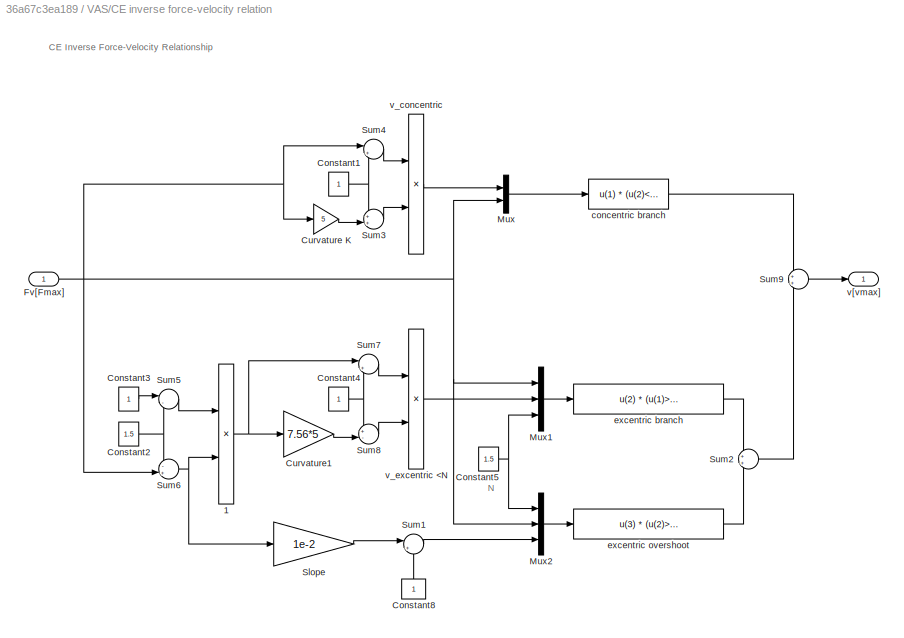
BLOCK [SubSystem] VAS/CE inverse force-velocity relation
  FunctionWithSeparateData = off
  MaskHideContents = off
  MinAlgLoopOccurrences = off
  Opaque = off
  Ports = [1, 1]
  PropExecContextOutsideSubsystem = off
  RTWSystemCode = Auto
  RequestExecContextInheritance = off
BLOCK [Product] VAS/CE inverse force-velocity relation/1
  InputSameDT = off
  Inputs = /*
  OutDataTypeStr = Inherit: Inherit via internal rule
  Ports = [2, 1]
  RndMeth = Floor
  SaturateOnIntegerOverflow = off
BLOCK [Constant] VAS/CE inverse force-velocity relation/Constant1
BLOCK [Constant] VAS/CE inverse force-velocity relation/Constant2
  Value = 1.5
BLOCK [Constant] VAS/CE inverse force-velocity relation/Constant3
BLOCK [Constant] VAS/CE inverse force-velocity relation/Constant4
BLOCK [Constant] VAS/CE inverse force-velocity relation/Constant5
  Value = 1.5
BLOCK [Constant] VAS/CE inverse force-velocity relation/Constant8
BLOCK [Gain] VAS/CE inverse force-velocity relation/Curvature K
  Gain = 5
BLOCK [Gain] VAS/CE inverse force-velocity relation/Curvature1
  Gain = 7.56*5
BLOCK [Inport] VAS/CE inverse force-velocity relation/Fv[Fmax]
  IconDisplay = Port number
BLOCK [Mux] VAS/CE inverse force-velocity relation/Mux
  DisplayOption = bar
  Inputs = 2
  Ports = [2, 1]
BLOCK [Mux] VAS/CE inverse force-velocity relation/Mux1
  DisplayOption = bar
  Inputs = 3
  Ports = [3, 1]
BLOCK [Mux] VAS/CE inverse force-velocity relation/Mux2
  DisplayOption = bar
  Inputs = 3
  Ports = [3, 1]
BLOCK [Gain] VAS/CE inverse force-velocity relation/Slope
  Gain = 1e-2
BLOCK [Sum] VAS/CE inverse force-velocity relation/Sum1
  IconShape = round
  Inputs = |++
  Ports = [2, 1]
BLOCK [Sum] VAS/CE inverse force-velocity relation/Sum2
  IconShape = round
  Ports = [2, 1]
BLOCK [Sum] VAS/CE inverse force-velocity relation/Sum3
  IconShape = round
  Inputs = ++|
  Ports = [2, 1]
BLOCK [Sum] VAS/CE inverse force-velocity relation/Sum4
  IconShape = round
  Inputs = |+-
  Ports = [2, 1]
BLOCK [Sum] VAS/CE inverse force-velocity relation/Sum5
  IconShape = round
  Inputs = |-+
  Ports = [2, 1]
BLOCK [Sum] VAS/CE inverse force-velocity relation/Sum6
  IconShape = round
  Inputs = -+|
  Ports = [2, 1]
BLOCK [Sum] VAS/CE inverse force-velocity relation/Sum7
  IconShape = round
  Inputs = |++
  Ports = [2, 1]
BLOCK [Sum] VAS/CE inverse force-velocity relation/Sum8
  IconShape = round
  Inputs = +-|
  Ports = [2, 1]
BLOCK [Sum] VAS/CE inverse force-velocity relation/Sum9
  IconShape = round
  Ports = [2, 1]
BLOCK [Fcn] VAS/CE inverse force-velocity relation/concentric branch
  Expr = u(1) * (u(2)<=1)
BLOCK [Fcn] VAS/CE inverse force-velocity relation/excentric branch
  Expr = u(2) * (u(1)>1)*(u(1)<=u(3))
BLOCK [Fcn] VAS/CE inverse force-velocity relation/excentric overshoot
  Expr = u(3) * (u(2)>u(1))
BLOCK [Outport] VAS/CE inverse force-velocity relation/v[vmax]
  IconDisplay = Port number
BLOCK [Product] VAS/CE inverse force-velocity relation/v_concentric
  InputSameDT = off
  Inputs = */
  OutDataTypeStr = Inherit: Inherit via internal rule
  Ports = [2, 1]
  RndMeth = Floor
  SaturateOnIntegerOverflow = off
BLOCK [Product] VAS/CE inverse force-velocity relation/v_excentric <N
  InputSameDT = off
  Inputs = */
  OutDataTypeStr = Inherit: Inherit via internal rule
  Ports = [2, 1]
  RndMeth = Floor
  SaturateOnIntegerOverflow = off
BLOCK [Constant] VAS/Constant
  Value = .4
BLOCK [Reference] VAS/ECC TransferFcn  REF=simulink_extras/Additional
Linear/Transfer Fcn
(with initial outputs)
  AttributesFormatString = pre-activation: %<Y0>
  D = [.01  1]
  N = [1]
  Ports = [1, 1]
  SourceBlock = simulink_extras/Additional\nLinear/Transfer Fcn\n(with initial outputs)
  SourceType = Transfer Function with Initial Outputs
  U0 = 0
  Y0 = .01
BLOCK [Gain] VAS/Fmax
  Gain = 12000
BLOCK [Outport] VAS/Fmtc
  IconDisplay = Port number
  InitialOutput = 0
BLOCK [Product] VAS/Fv = Fse // (A*Fce)
  Inputs = */
  Ports = [2, 1]
  RndMeth = Floor
BLOCK [Integrator] VAS/Integrator
  InitialConditionSource = external
  LowerSaturationLimit = 0.05
  Ports = [2, 1]
BLOCK [Outport] VAS/Lce
  IconDisplay = Port number
  InitialOutput = 0
  Port = 2
BLOCK [Outport] VAS/Lse
  IconDisplay = Port number
  InitialOutput = 0
  Port = 4
BLOCK [SubSystem] VAS/PE force-length relation
  FunctionWithSeparateData = off
  MaskHideContents = off
  MinAlgLoopOccurrences = off
  Opaque = off
  Ports = [1, 1]
  PropExecContextOutsideSubsystem = off
  RTWSystemCode = Auto
  RequestExecContextInheritance = off
BLOCK [Constant] VAS/PE force-length relation/Constant3
BLOCK [Math] VAS/PE force-length relation/Math Function2
  Operator = square
  Ports = [1, 1]
BLOCK [Mux] VAS/PE force-length relation/Mux
  DisplayOption = bar
  Inputs = 2
  Ports = [2, 1]
BLOCK [Sum] VAS/PE force-length relation/Sum1
  IconShape = round
  Inputs = |+-
  Ports = [2, 1]
BLOCK [Fcn] VAS/PE force-length relation/force above slack length
  Expr = u(2) * (u(1)>1)
BLOCK [Outport] VAS/PE force-length relation/fpe [Fmax]
  IconDisplay = Port number
BLOCK [Inport] VAS/PE force-length relation/lce [lopt]
  IconDisplay = Port number
BLOCK [Constant] VAS/PE force-length relation/reference strain [lopt] w
  Value = .4*.1
BLOCK [Product] VAS/PE force-length relation/relative strain
  InputSameDT = off
  Inputs = */
  OutDataTypeStr = Inherit: Inherit via internal rule
  Ports = [2, 1]
  RndMeth = Floor
  SaturateOnIntegerOverflow = off
BLOCK [SubSystem] VAS/SE force-length relation
  FunctionWithSeparateData = off
  MaskHideContents = off
  MinAlgLoopOccurrences = off
  Opaque = off
  Ports = [1, 1]
  PropExecContextOutsideSubsystem = off
  RTWSystemCode = Auto
  RequestExecContextInheritance = off
BLOCK [Constant] VAS/SE force-length relation/Constant1
BLOCK [Math] VAS/SE force-length relation/Math Function
  Operator = square
  Ports = [1, 1]
BLOCK [Mux] VAS/SE force-length relation/Mux
  DisplayOption = bar
  Inputs = 2
  Ports = [2, 1]
BLOCK [Sum] VAS/SE force-length relation/Sum4
  IconShape = round
  Inputs = |+-
  Ports = [2, 1]
BLOCK [Fcn] VAS/SE force-length relation/force above slack length
  Expr = u(2)*(u(1)>1)
BLOCK [Outport] VAS/SE force-length relation/fse [Fmax]
  IconDisplay = Port number
BLOCK [Inport] VAS/SE force-length relation/lse [lslack]
  IconDisplay = Port number
BLOCK [Constant] VAS/SE force-length relation/reference strain [lslack] eref
  Value = .04*.1
BLOCK [Product] VAS/SE force-length relation/relative strain
  InputSameDT = off
  Inputs = */
  OutDataTypeStr = Inherit: Inherit via internal rule
  Ports = [2, 1]
  RndMeth = Floor
  SaturateOnIntegerOverflow = off
BLOCK [Inport] VAS/STIM
  IconDisplay = Port number
BLOCK [Sum] VAS/Sum
  IconShape = round
  Inputs = |+-
  Ports = [2, 1]
BLOCK [Sum] VAS/Sum2
  IconShape = round
  Inputs = |-+
  Ports = [2, 1]
BLOCK [Sum] VAS/Sum3
  IconShape = round
  Ports = [2, 1]
BLOCK [Outport] VAS/Vce
  IconDisplay = Port number
  InitialOutput = 0
  Port = 3
BLOCK [Gain] VAS/lce//lopt
  Gain = 1/.1
BLOCK [Inport] VAS/lmtc [m]
  IconDisplay = Port number
  Port = 2
BLOCK [Gain] VAS/vmax*lopt
  Gain = -12*.1
BLOCK [SubSystem] muscle attachment
  FunctionWithSeparateData = off
  MaskHideContents = off
  MinAlgLoopOccurrences = off
  Opaque = off
  Ports = [1, 2]
  PropExecContextOutsideSubsystem = off
  RTWSystemCode = Auto
  RequestExecContextInheritance = off
BLOCK [Constant] muscle attachment/Constant
  Value = .4+.1
BLOCK [Constant] muscle attachment/Constant1
  Value = .04
BLOCK [Constant] muscle attachment/Constant2
  Value = 90*pi/180
BLOCK [Product] muscle attachment/Product
  InputSameDT = off
  OutDataTypeStr = Inherit: Inherit via internal rule
  Ports = [2, 1]
  SaturateOnIntegerOverflow = off
BLOCK [Sum] muscle attachment/Sum2
  IconShape = round
  InputSameDT = off
  Inputs = |+-
  OutDataTypeStr = Inherit: Inherit via internal rule
  Ports = [2, 1]
  SaturateOnIntegerOverflow = off
BLOCK [Sum] muscle attachment/Sum5
  IconShape = round
  InputSameDT = off
  Inputs = |+-
  OutDataTypeStr = Inherit: Inherit via internal rule
  Ports = [2, 1]
  SaturateOnIntegerOverflow = off
BLOCK [Inport] muscle attachment/angle [rad]
  IconDisplay = Port number
BLOCK [Outport] muscle attachment/lever [m]
  IconDisplay = Port number
  Port = 2
BLOCK [Outport] muscle attachment/lmtu [m]
  IconDisplay = Port number
ANNOTATION (root): 11/15: controlled leg - less movement at the moment
ANNOTATION (root): 11/15: currently free swinging
ANNOTATION (root): subtract half that from constant 1
ANNOTATION (root): whatever is subtracted from constant 2
ANNOTATION VAS: Excitation Contraction Coupling
ANNOTATION VAS: VASTI Muscle-Tendon Dynamics
ANNOTATION VAS: lslack
ANNOTATION VAS/CE force-length relation: CE Force-Length Relationship
ANNOTATION VAS/CE force-length relation: log(c)
ANNOTATION VAS/CE inverse force-velocity relation: CE Inverse Force-Velocity Relationship
ANNOTATION VAS/CE inverse force-velocity relation: N
ANNOTATION VAS/PE force-length relation: Parallel Elasticity PE
ANNOTATION VAS/SE force-length relation: SE Force-Length Relationship
ANNOTATION muscle attachment: Muscle Attachment
ANNOTATION muscle attachment: lslack+lopt
LINE Constant:1 -> Joint Actuator:1
LINE Ground1/Constant:1 -> Ground1/angle:1
NET Ground1/Subsystem L Contact/Compare To Zero:1 -> Ground1/Subsystem L Contact/Product1:1, Ground1/Subsystem L Contact/Product:2
LINE Ground1/Subsystem L Contact/In1:1 -> Ground1/Subsystem L Contact/L GRFx:1
LINE Ground1/Subsystem L Contact/In2:1 -> Ground1/Subsystem L Contact/L GRFy:1
LINE Ground1/Subsystem L Contact/L GRFx:1 -> Ground1/Subsystem L Contact/Product:1
NET Ground1/Subsystem L Contact/L GRFy:1 -> Ground1/Subsystem L Contact/Compare To Zero:1, Ground1/Subsystem L Contact/Product1:2
LINE Ground1/Subsystem L Contact/Product1:1 -> Ground1/Subsystem L Contact/Out2:1
LINE Ground1/Subsystem L Contact/Product:1 -> Ground1/Subsystem L Contact/Out1:1
LINE Ground1/Subsystem L Contact:1 -> Ground1/x Joint Actuator:1
LINE Ground1/Subsystem L Contact:2 -> Ground1/y Joint Actuator:1
LINE Ground1/x Joint Sensor:1 -> Ground1/Subsystem L Contact:1
LINE Ground1/y Joint Sensor:1 -> Ground1/Subsystem L Contact:2
LINE Joint Sensor:1 -> muscle attachment:1
LINE Leg 1/Constant2:1 -> Leg 1/Joint Actuator1:1
LINE Leg 2/Constant3:1 -> Leg 2/Joint Actuator3:1
LINE VAS/1//lslack:1 -> VAS/SE force-length relation:1
LINE VAS/1:1 -> VAS/Sum3:2
LINE VAS/CE force-length relation/Abs:1 -> VAS/CE force-length relation/normalized position:1
LINE VAS/CE force-length relation/Constant1:1 -> VAS/CE force-length relation/Sum4:2
LINE VAS/CE force-length relation/Constant2:1 -> VAS/CE force-length relation/Math Function1:2
LINE VAS/CE force-length relation/Gain:1 -> VAS/CE force-length relation/Math Function:1
LINE VAS/CE force-length relation/Math Function1:1 -> VAS/CE force-length relation/Gain:1
LINE VAS/CE force-length relation/Math Function:1 -> VAS/CE force-length relation/fce [Fmax]:1
LINE VAS/CE force-length relation/Sum4:1 -> VAS/CE force-length relation/Abs:1
LINE VAS/CE force-length relation/lce [lopt]:1 -> VAS/CE force-length relation/Sum4:1
LINE VAS/CE force-length relation/normalized position:1 -> VAS/CE force-length relation/Math Function1:1
LINE VAS/CE force-length relation/relative width w:1 -> VAS/CE force-length relation/normalized position:2
LINE VAS/CE force-length relation:1 -> VAS/1:1
NET VAS/CE inverse force-velocity relation/1:1 -> VAS/CE inverse force-velocity relation/Curvature1:1, VAS/CE inverse force-velocity relation/Sum7:1
NET VAS/CE inverse force-velocity relation/Constant1:1 -> VAS/CE inverse force-velocity relation/Sum3:1, VAS/CE inverse force-velocity relation/Sum4:2
NET VAS/CE inverse force-velocity relation/Constant2:1 -> VAS/CE inverse force-velocity relation/Sum5:2, VAS/CE inverse force-velocity relation/Sum6:1
LINE VAS/CE inverse force-velocity relation/Constant3:1 -> VAS/CE inverse force-velocity relation/Sum5:1
NET VAS/CE inverse force-velocity relation/Constant4:1 -> VAS/CE inverse force-velocity relation/Sum7:2, VAS/CE inverse force-velocity relation/Sum8:1
NET VAS/CE inverse force-velocity relation/Constant5:1 -> VAS/CE inverse force-velocity relation/Mux1:3, VAS/CE inverse force-velocity relation/Mux2:1
LINE VAS/CE inverse force-velocity relation/Constant8:1 -> VAS/CE inverse force-velocity relation/Sum1:2
LINE VAS/CE inverse force-velocity relation/Curvature K:1 -> VAS/CE inverse force-velocity relation/Sum3:2
LINE VAS/CE inverse force-velocity relation/Curvature1:1 -> VAS/CE inverse force-velocity relation/Sum8:2
NET VAS/CE inverse force-velocity relation/Fv[Fmax]:1 -> VAS/CE inverse force-velocity relation/Curvature K:1, VAS/CE inverse force-velocity relation/Mux1:1, VAS/CE inverse force-velocity relation/Mux2:2, VAS/CE inverse force-velocity relation/Mux:2, VAS/CE inverse force-velocity relation/Sum4:1, VAS/CE inverse force-velocity relation/Sum6:2
LINE VAS/CE inverse force-velocity relation/Mux1:1 -> VAS/CE inverse force-velocity relation/excentric branch:1
LINE VAS/CE inverse force-velocity relation/Mux2:1 -> VAS/CE inverse force-velocity relation/excentric overshoot:1
LINE VAS/CE inverse force-velocity relation/Mux:1 -> VAS/CE inverse force-velocity relation/concentric branch:1
LINE VAS/CE inverse force-velocity relation/Slope:1 -> VAS/CE inverse force-velocity relation/Sum1:1
LINE VAS/CE inverse force-velocity relation/Sum1:1 -> VAS/CE inverse force-velocity relation/Mux2:3
LINE VAS/CE inverse force-velocity relation/Sum2:1 -> VAS/CE inverse force-velocity relation/Sum9:2
LINE VAS/CE inverse force-velocity relation/Sum3:1 -> VAS/CE inverse force-velocity relation/v_concentric:2
LINE VAS/CE inverse force-velocity relation/Sum4:1 -> VAS/CE inverse force-velocity relation/v_concentric:1
LINE VAS/CE inverse force-velocity relation/Sum5:1 -> VAS/CE inverse force-velocity relation/1:1
NET VAS/CE inverse force-velocity relation/Sum6:1 -> VAS/CE inverse force-velocity relation/1:2, VAS/CE inverse force-velocity relation/Slope:1
LINE VAS/CE inverse force-velocity relation/Sum7:1 -> VAS/CE inverse force-velocity relation/v_excentric <N:1
LINE VAS/CE inverse force-velocity relation/Sum8:1 -> VAS/CE inverse force-velocity relation/v_excentric <N:2
LINE VAS/CE inverse force-velocity relation/Sum9:1 -> VAS/CE inverse force-velocity relation/v[vmax]:1
LINE VAS/CE inverse force-velocity relation/concentric branch:1 -> VAS/CE inverse force-velocity relation/Sum9:1
LINE VAS/CE inverse force-velocity relation/excentric branch:1 -> VAS/CE inverse force-velocity relation/Sum2:1
LINE VAS/CE inverse force-velocity relation/excentric overshoot:1 -> VAS/CE inverse force-velocity relation/Sum2:2
LINE VAS/CE inverse force-velocity relation/v_concentric:1 -> VAS/CE inverse force-velocity relation/Mux:1
LINE VAS/CE inverse force-velocity relation/v_excentric <N:1 -> VAS/CE inverse force-velocity relation/Mux1:2
LINE VAS/CE inverse force-velocity relation:1 -> VAS/vmax*lopt:1
LINE VAS/Constant:1 -> VAS/Sum2:1
NET VAS/ECC TransferFcn:1 -> VAS/1:2, VAS/A:1
LINE VAS/Fmax:1 -> VAS/Fmtc:1
LINE VAS/Fv = Fse // (A*Fce):1 -> VAS/CE inverse force-velocity relation:1
NET VAS/Integrator:1 -> VAS/Lce:1, VAS/Sum:2, VAS/lce//lopt:1
LINE VAS/PE force-length relation/Constant3:1 -> VAS/PE force-length relation/Sum1:2
LINE VAS/PE force-length relation/Math Function2:1 -> VAS/PE force-length relation/Mux:2
LINE VAS/PE force-length relation/Mux:1 -> VAS/PE force-length relation/force above slack length:1
LINE VAS/PE force-length relation/Sum1:1 -> VAS/PE force-length relation/relative strain:1
LINE VAS/PE force-length relation/force above slack length:1 -> VAS/PE force-length relation/fpe [Fmax]:1
NET VAS/PE force-length relation/lce [lopt]:1 -> VAS/PE force-length relation/Mux:1, VAS/PE force-length relation/Sum1:1
LINE VAS/PE force-length relation/reference strain [lopt] w:1 -> VAS/PE force-length relation/relative strain:2
LINE VAS/PE force-length relation/relative strain:1 -> VAS/PE force-length relation/Math Function2:1
LINE VAS/PE force-length relation:1 -> VAS/Sum3:1
LINE VAS/SE force-length relation/Constant1:1 -> VAS/SE force-length relation/Sum4:2
LINE VAS/SE force-length relation/Math Function:1 -> VAS/SE force-length relation/Mux:2
LINE VAS/SE force-length relation/Mux:1 -> VAS/SE force-length relation/force above slack length:1
LINE VAS/SE force-length relation/Sum4:1 -> VAS/SE force-length relation/relative strain:1
LINE VAS/SE force-length relation/force above slack length:1 -> VAS/SE force-length relation/fse [Fmax]:1
NET VAS/SE force-length relation/lse [lslack]:1 -> VAS/SE force-length relation/Mux:1, VAS/SE force-length relation/Sum4:1
LINE VAS/SE force-length relation/reference strain [lslack] eref:1 -> VAS/SE force-length relation/relative strain:2
LINE VAS/SE force-length relation/relative strain:1 -> VAS/SE force-length relation/Math Function:1
NET VAS/SE force-length relation:1 -> VAS/Fmax:1, VAS/Fv = Fse // (A*Fce):1
LINE VAS/STIM:1 -> VAS/ECC TransferFcn:1
LINE VAS/Sum2:1 -> VAS/Integrator:2
LINE VAS/Sum3:1 -> VAS/Fv = Fse // (A*Fce):2
NET VAS/Sum:1 -> VAS/1//lslack:1, VAS/Lse:1
NET VAS/lce//lopt:1 -> VAS/CE force-length relation:1, VAS/PE force-length relation:1
NET VAS/lmtc [m]:1 -> VAS/Sum2:2, VAS/Sum:1
NET VAS/vmax*lopt:1 -> VAS/Integrator:1, VAS/Vce:1
LINE VAS:1 -> Product6:1
NET muscle attachment/Constant1:1 -> muscle attachment/Product:2, muscle attachment/lever [m]:1
LINE muscle attachment/Constant2:1 -> muscle attachment/Sum2:2
LINE muscle attachment/Constant:1 -> muscle attachment/Sum5:1
LINE muscle attachment/Product:1 -> muscle attachment/Sum5:2
LINE muscle attachment/Sum2:1 -> muscle attachment/Product:1
LINE muscle attachment/Sum5:1 -> muscle attachment/lmtu [m]:1
LINE muscle attachment/angle [rad]:1 -> muscle attachment/Sum2:1
LINE muscle attachment:1 -> VAS:2
LINE muscle attachment:2 -> Product6:2
PLINE Body:LConn1 -- Ground1:RConn1
PLINE Body:LConn2 -- Revolute8:LConn1
PLINE Body:LConn3 -- Revolute3:LConn1
PLINE Ground1/Conn1:RConn1 -- Ground1/Planar:RConn1
PLINE Ground1/Ground1:LConn1 -- Ground1/Machine Environment:RConn1
PLINE Ground1/Ground1:RConn1 -- Ground1/Planar:LConn1
PLINE Ground1/Planar:LConn2 -- Ground1/y Joint Sensor:LConn1
PLINE Ground1/Planar:LConn3 -- Ground1/x Joint Sensor:LConn1
PLINE Ground1/Planar:LConn4 -- Ground1/angle:RConn1
PLINE Ground1/Planar:RConn2 -- Ground1/y Joint Actuator:RConn1
PLINE Ground1/Planar:RConn3 -- Ground1/x Joint Actuator:RConn1
PLINE Joint Actuator2:RConn1 -- Revolute3:LConn2
PLINE Joint Actuator:RConn1 -- Revolute8:LConn2
PLINE Joint Initial Condition1:RConn1 -- Revolute3:RConn2
PLINE Joint Initial Condition:RConn1 -- Revolute8:RConn2
PLINE Joint Sensor:LConn1 -- Revolute3:LConn3
PLINE Leg 1/Conn1:RConn1 -- Leg 1/Link 2:LConn1
PLINE Leg 1/Conn2:RConn1 -- Leg 1/Link 4:RConn1
PLINE Leg 1/Joint Actuator1:RConn1 -- Leg 1/Revolute1:LConn2
PLINE Leg 1/Link 1:LConn1 -- Leg 1/Revolute:RConn1
PLINE Leg 1/Link 1:RConn1 -- Leg 1/Revolute1:LConn1
PLINE Leg 1/Link 2:LConn2 -- Leg 1/Revolute1:RConn1
PLINE Leg 1/Link 2:RConn1 -- Leg 1/Revolute2:LConn1
PLINE Leg 1/Link 3:LConn1 -- Leg 1/Revolute4:RConn1
PLINE Leg 1/Link 3:RConn1 -- Leg 1/Revolute:LConn1
PLINE Leg 1/Link 4:LConn1 -- Leg 1/Revolute4:LConn1
PLINE Leg 1/Link 4:LConn2 -- Leg 1/Revolute2:RConn1
PLINE Leg 1:RConn1 -- Revolute8:RConn1
PLINE Leg 2/Conn1:RConn1 -- Leg 2/Link 6:LConn1
PLINE Leg 2/Conn2:RConn1 -- Leg 2/Link 8:RConn1
PLINE Leg 2/Joint Actuator3:RConn1 -- Leg 2/Revolute6:LConn2
PLINE Leg 2/Link 5:LConn1 -- Leg 2/Revolute5:RConn1
PLINE Leg 2/Link 5:RConn1 -- Leg 2/Revolute6:LConn1
PLINE Leg 2/Link 6:LConn2 -- Leg 2/Revolute6:RConn1
PLINE Leg 2/Link 6:RConn1 -- Leg 2/Revolute7:LConn1
PLINE Leg 2/Link 7:LConn1 -- Leg 2/Revolute9:RConn1
PLINE Leg 2/Link 7:RConn1 -- Leg 2/Revolute5:LConn1
PLINE Leg 2/Link 8:LConn1 -- Leg 2/Revolute9:LConn1
PLINE Leg 2/Link 8:LConn2 -- Leg 2/Revolute7:RConn1
PLINE Leg 2:RConn1 -- Revolute3:RConn1
note: NET lines group one-source signal fan-out (src -> all destinations, sorted); 1:1 wires keep LINE
